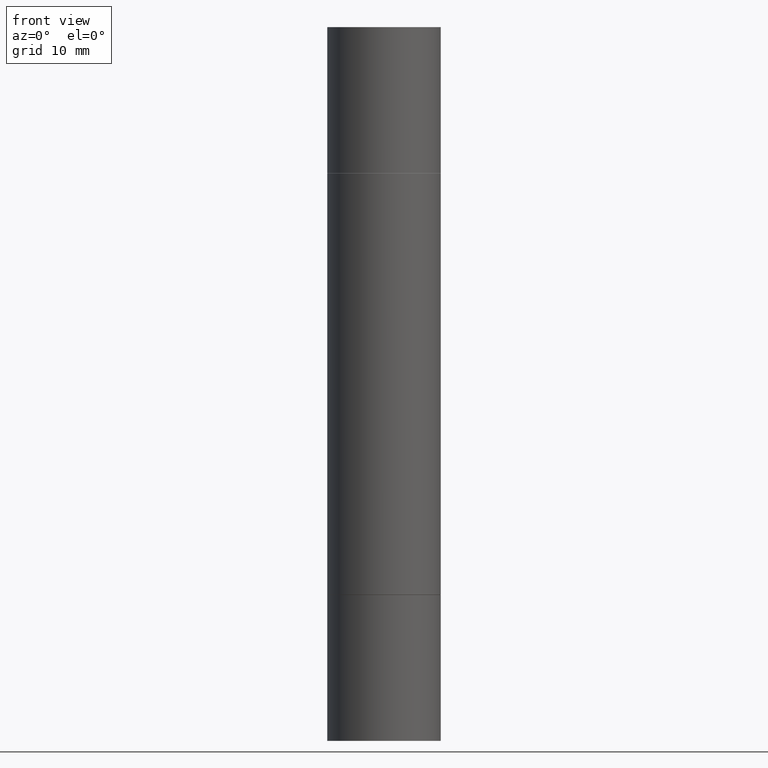
[diagram: clean part render]
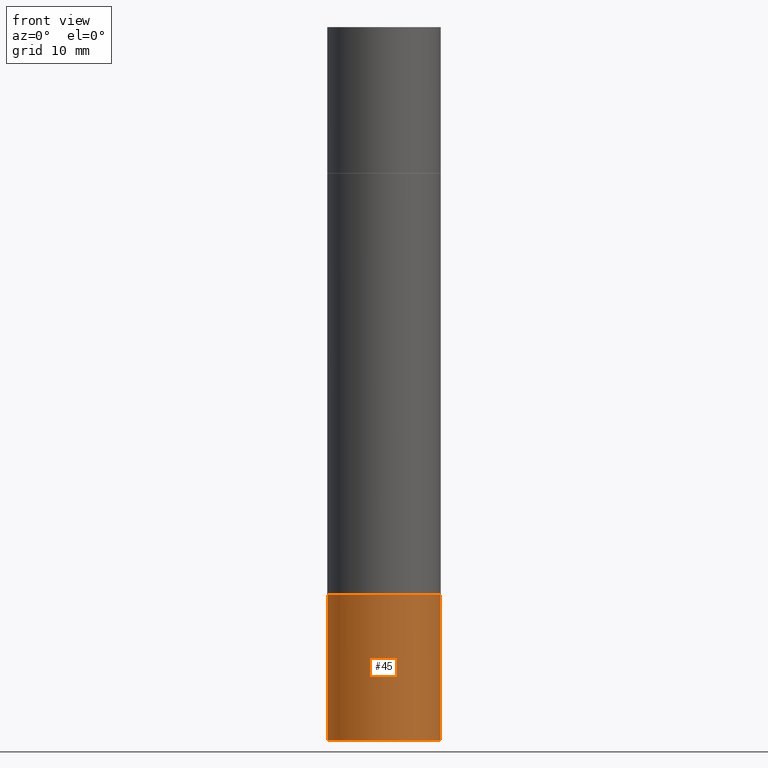
[diagram: same view with one face highlighted and labeled with its STEP entity id]
A machine part, front view. The second image highlights one B-rep face of the part: STEP entity #45.
In plain terms, the highlighted cylindrical surface (partial cylindrical patch) has radius 5.5562 mm, axis along (-0, 0, 1).
Its self-contained STEP definition (entity closure, byte-faithful):
#2 = LINE ( 'NONE', #635, #607 ) ;
#25 = CARTESIAN_POINT ( 'NONE',  ( -0.2187500000000000000, -7.066155191128507043E-15, -2.187999999999999723 ) ) ;
#28 = DIRECTION ( 'NONE',  ( -2.445468806185136597E-29, 3.491481338843145583E-15, 1.000000000000000000 ) ) ;
#35 = CARTESIAN_POINT ( 'NONE',  ( -0.2187500000000000000, 1.554312234475219157E-15, -1.076017050993260622E-29 ) ) ;
#41 = VECTOR ( 'NONE', #250, 39.37007874015748143 ) ;
#45 = ADVANCED_FACE ( 'NONE', ( #384 ), #387, .T. ) ;
#73 = CARTESIAN_POINT ( 'NONE',  ( 6.725039217009124520E-29, -9.601573681818649859E-15, -2.750000000000000000 ) ) ;
#111 = DIRECTION ( 'NONE',  ( -2.445468806185136877E-29, 3.491481338843145188E-15, 1.000000000000000000 ) ) ;
#137 = EDGE_CURVE ( 'NONE', #346, #672, #362, .T. ) ;
#143 = DIRECTION ( 'NONE',  ( 1.000000000000000000, -6.982962677686266711E-15, 4.876176775795935232E-29 ) ) ;
#183 = VERTEX_POINT ( 'NONE', #328 ) ;
#197 = LINE ( 'NONE', #35, #41 ) ;
#215 = ORIENTED_EDGE ( 'NONE', *, *, #230, .T. ) ;
#230 = EDGE_CURVE ( 'NONE', #672, #183, #2, .T. ) ;
#231 = ORIENTED_EDGE ( 'NONE', *, *, #403, .F. ) ;
#234 = CIRCLE ( 'NONE', #485, 0.2187500000000000000 ) ;
#250 = DIRECTION ( 'NONE',  ( -2.445468806185136877E-29, 3.491481338843145188E-15, 1.000000000000000000 ) ) ;
#254 = CARTESIAN_POINT ( 'NONE',  ( 0.2187500000000000000, -1.112909676756251991E-14, -2.750000000000000000 ) ) ;
#268 = ORIENTED_EDGE ( 'NONE', *, *, #640, .F. ) ;
#279 = DIRECTION ( 'NONE',  ( -2.445468806185136597E-29, 3.491481338843145583E-15, 1.000000000000000000 ) ) ;
#308 = DIRECTION ( 'NONE',  ( 1.000000000000000000, -6.982962677686262766E-15, 0.000000000000000000 ) ) ;
#328 = CARTESIAN_POINT ( 'NONE',  ( 0.2187500000000000000, -9.166884255132671016E-15, -2.187999999999999723 ) ) ;
#346 = VERTEX_POINT ( 'NONE', #417 ) ;
#362 = CIRCLE ( 'NONE', #574, 0.2187500000000000000 ) ;
#365 = CARTESIAN_POINT ( 'NONE',  ( 5.350685747933077986E-29, -7.639361169388800962E-15, -2.187999999999999723 ) ) ;
#378 = ORIENTED_EDGE ( 'NONE', *, *, #137, .T. ) ;
#384 = FACE_OUTER_BOUND ( 'NONE', #529, .T. ) ;
#387 = CYLINDRICAL_SURFACE ( 'NONE', #648, 0.2187500000000000000 ) ;
#403 = EDGE_CURVE ( 'NONE', #544, #183, #234, .T. ) ;
#417 = CARTESIAN_POINT ( 'NONE',  ( -0.2187500000000000000, -7.066155191128507043E-15, -2.750000000000000000 ) ) ;
#483 = DIRECTION ( 'NONE',  ( 1.000000000000000000, -6.982962677686262766E-15, 0.000000000000000000 ) ) ;
#485 = AXIS2_PLACEMENT_3D ( 'NONE', #365, #576, #308 ) ;
#529 = EDGE_LOOP ( 'NONE', ( #268, #378, #215, #231 ) ) ;
#544 = VERTEX_POINT ( 'NONE', #25 ) ;
#574 = AXIS2_PLACEMENT_3D ( 'NONE', #73, #279, #483 ) ;
#576 = DIRECTION ( 'NONE',  ( -2.445468806185136597E-29, 3.491481338843145583E-15, 1.000000000000000000 ) ) ;
#607 = VECTOR ( 'NONE', #111, 39.37007874015748143 ) ;
#635 = CARTESIAN_POINT ( 'NONE',  ( 0.2187500000000000000, -1.527523085743870843E-15, 1.066663669705360885E-29 ) ) ;
#640 = EDGE_CURVE ( 'NONE', #346, #544, #197, .T. ) ;
#648 = AXIS2_PLACEMENT_3D ( 'NONE', #656, #28, #143 ) ;
#656 = CARTESIAN_POINT ( 'NONE',  ( 0.000000000000000000, 0.000000000000000000, 0.000000000000000000 ) ) ;
#672 = VERTEX_POINT ( 'NONE', #254 ) ;